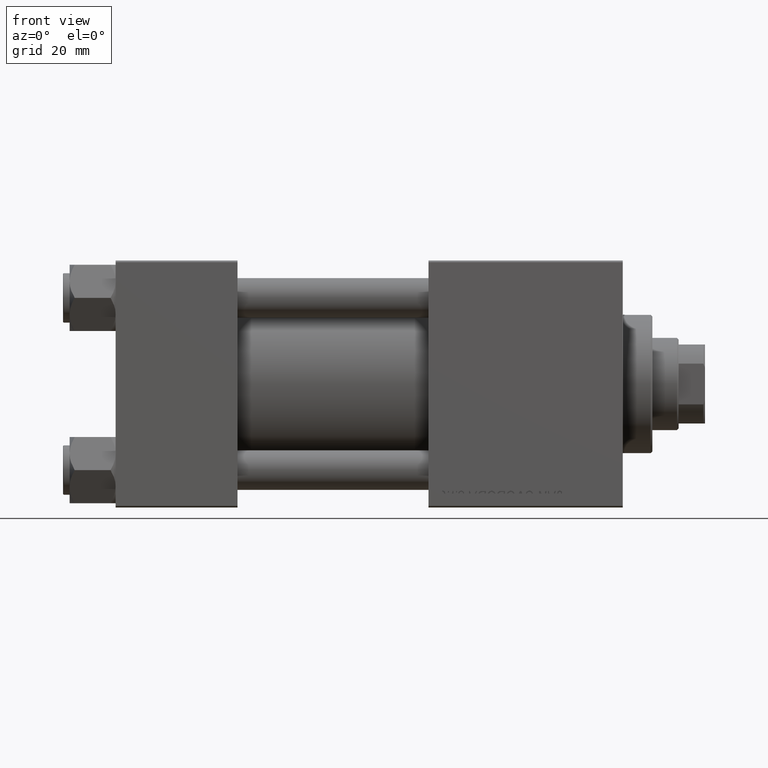
[diagram: clean part render]
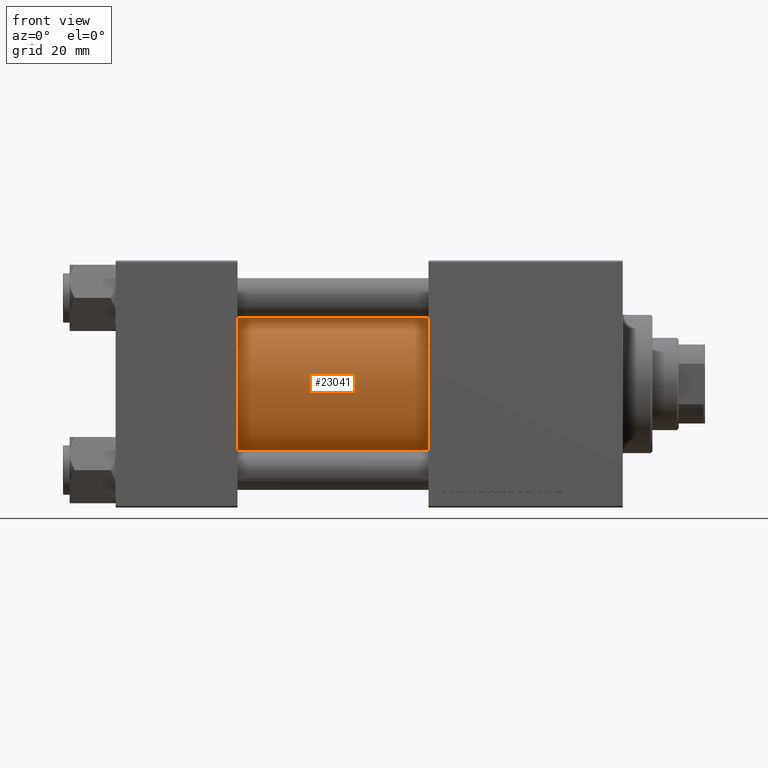
[diagram: same view with one face highlighted and labeled with its STEP entity id]
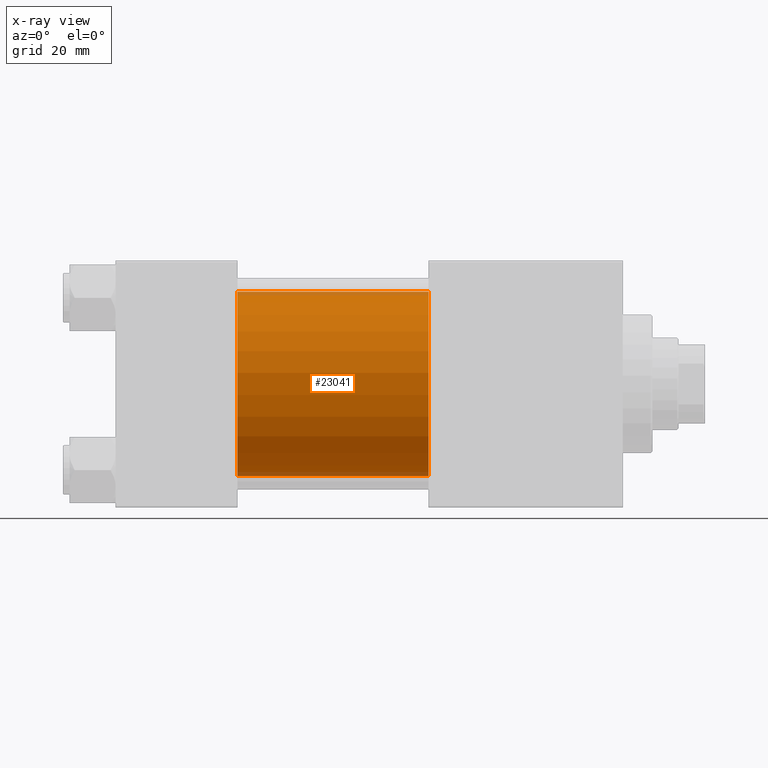
[diagram: x-ray of the same camera — body ghosted, the highlighted face saturated]
A machine part, front view. The second image highlights one B-rep face of the part: STEP entity #23041.
The next image is the same camera in x-ray: the body ghosted, the highlighted face saturated — about 4% of this face is hidden behind the body in this view.
In plain terms, the highlighted cylindrical surface (partial cylindrical patch) has radius 28 mm, axis along (-1, -0, -0).
Its self-contained STEP definition (entity closure, byte-faithful):
#1271 = AXIS2_PLACEMENT_3D ( 'NONE', #37691, #15104, #22470 ) ;
#2914 = ORIENTED_EDGE ( 'NONE', *, *, #23930, .F. ) ;
#4767 = AXIS2_PLACEMENT_3D ( 'NONE', #48475, #13714, #29193 ) ;
#5098 = VERTEX_POINT ( 'NONE', #48757 ) ;
#6175 = CARTESIAN_POINT ( 'NONE',  ( 95.00000000000000000, 8.269258236473776482E-16, -28.00000000000000000 ) ) ;
#8466 = DIRECTION ( 'NONE',  ( 0.000000000000000000, 0.000000000000000000, -1.000000000000000000 ) ) ;
#8706 = CARTESIAN_POINT ( 'NONE',  ( 95.00000000000000000, -2.602085213965210642E-15, 0.000000000000000000 ) ) ;
#8823 = VECTOR ( 'NONE', #30280, 1000.000000000000000 ) ;
#9358 = VERTEX_POINT ( 'NONE', #35631 ) ;
#9379 = EDGE_CURVE ( 'NONE', #11997, #5098, #47560, .T. ) ;
#9541 = EDGE_CURVE ( 'NONE', #26271, #9358, #30790, .T. ) ;
#9635 = FACE_OUTER_BOUND ( 'NONE', #31573, .T. ) ;
#11997 = VERTEX_POINT ( 'NONE', #42435 ) ;
#13714 = DIRECTION ( 'NONE',  ( -1.000000000000000000, -0.000000000000000000, -0.000000000000000000 ) ) ;
#15104 = DIRECTION ( 'NONE',  ( 1.000000000000000000, -0.000000000000000000, 0.000000000000000000 ) ) ;
#15388 = CIRCLE ( 'NONE', #16160, 28.00000000000000000 ) ;
#16160 = AXIS2_PLACEMENT_3D ( 'NONE', #8706, #47040, #8466 ) ;
#18699 = ORIENTED_EDGE ( 'NONE', *, *, #48782, .T. ) ;
#20678 = CARTESIAN_POINT ( 'NONE',  ( 95.00000000000000000, -2.602085213965210642E-15, 28.00000000000000000 ) ) ;
#22425 = CARTESIAN_POINT ( 'NONE',  ( 95.00000000000000000, 8.269258236473776482E-16, -28.00000000000000000 ) ) ;
#22470 = DIRECTION ( 'NONE',  ( 0.000000000000000000, 0.000000000000000000, 1.000000000000000000 ) ) ;
#23041 = ADVANCED_FACE ( 'NONE', ( #9635 ), #33245, .T. ) ;
#23930 = EDGE_CURVE ( 'NONE', #11997, #26271, #15388, .T. ) ;
#26271 = VERTEX_POINT ( 'NONE', #6175 ) ;
#27499 = VECTOR ( 'NONE', #46814, 1000.000000000000000 ) ;
#29193 = DIRECTION ( 'NONE',  ( 0.000000000000000000, 0.000000000000000000, 1.000000000000000000 ) ) ;
#29628 = ORIENTED_EDGE ( 'NONE', *, *, #9541, .F. ) ;
#30280 = DIRECTION ( 'NONE',  ( -1.000000000000000000, -0.000000000000000000, -0.000000000000000000 ) ) ;
#30790 = LINE ( 'NONE', #22425, #8823 ) ;
#31573 = EDGE_LOOP ( 'NONE', ( #29628, #2914, #47318, #18699 ) ) ;
#33245 = CYLINDRICAL_SURFACE ( 'NONE', #4767, 28.00000000000000000 ) ;
#35631 = CARTESIAN_POINT ( 'NONE',  ( 37.00000000000000000, 8.269258236473776482E-16, -28.00000000000000000 ) ) ;
#37691 = CARTESIAN_POINT ( 'NONE',  ( 37.00000000000000000, -2.602085213965210642E-15, 0.000000000000000000 ) ) ;
#42435 = CARTESIAN_POINT ( 'NONE',  ( 95.00000000000000000, -2.602085213965210642E-15, 28.00000000000000000 ) ) ;
#45850 = CIRCLE ( 'NONE', #1271, 28.00000000000000000 ) ;
#46814 = DIRECTION ( 'NONE',  ( -1.000000000000000000, -0.000000000000000000, -0.000000000000000000 ) ) ;
#47040 = DIRECTION ( 'NONE',  ( 1.000000000000000000, 0.000000000000000000, 0.000000000000000000 ) ) ;
#47318 = ORIENTED_EDGE ( 'NONE', *, *, #9379, .T. ) ;
#47560 = LINE ( 'NONE', #20678, #27499 ) ;
#48475 = CARTESIAN_POINT ( 'NONE',  ( 95.00000000000000000, -2.602085213965210642E-15, 0.000000000000000000 ) ) ;
#48757 = CARTESIAN_POINT ( 'NONE',  ( 37.00000000000000000, -2.602085213965210642E-15, 28.00000000000000000 ) ) ;
#48782 = EDGE_CURVE ( 'NONE', #5098, #9358, #45850, .T. ) ;